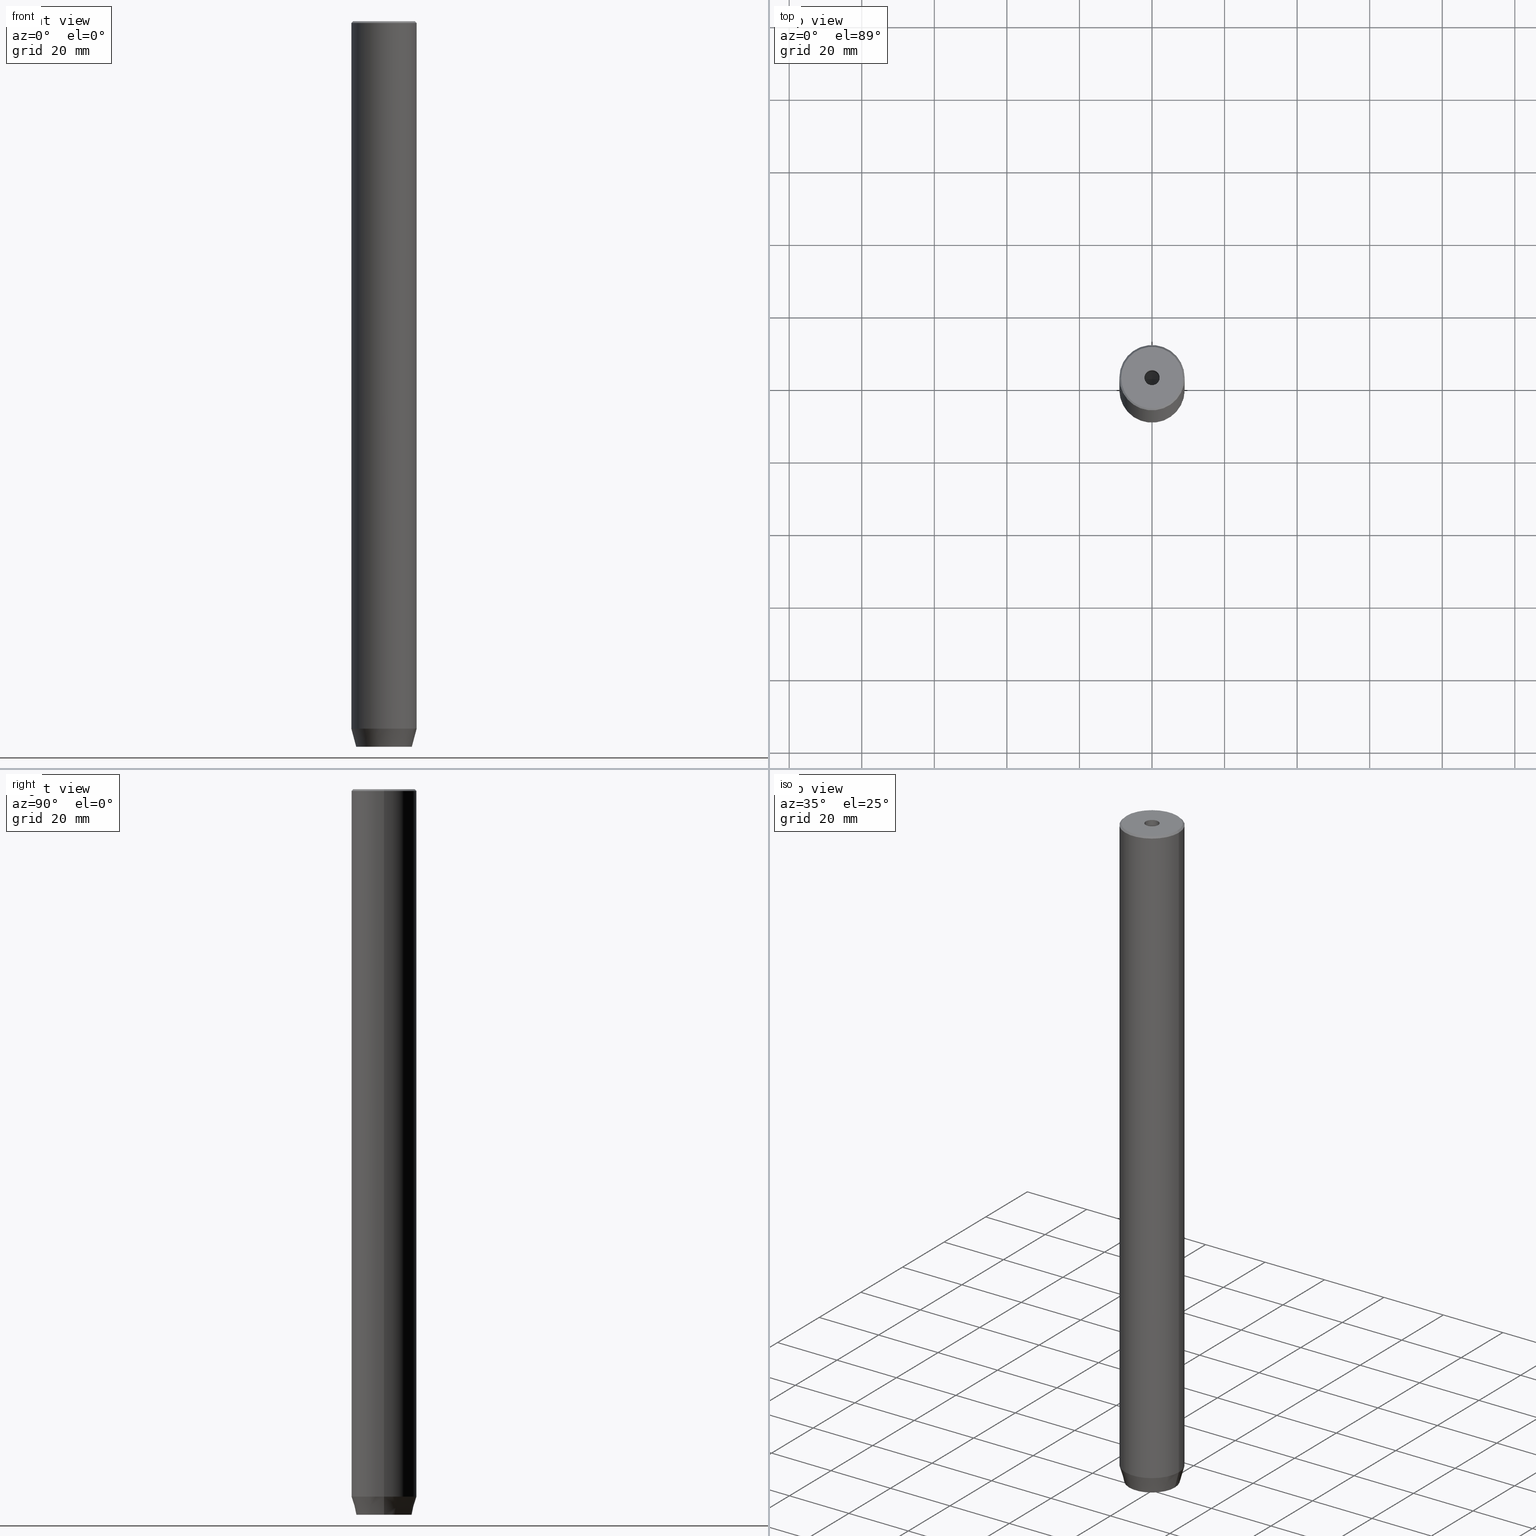
[diagram: canonical four-view strip — front | top / right | iso, engineering-drawing reading convention]
A machine part, canonical four-view strip (front | top / right | iso — engineering-drawing reading convention). The complete STEP part file that produces these views, byte-faithful:
ISO-10303-21;
HEADER;
FILE_DESCRIPTION (( 'STEP AP203' ),
    '1' );
FILE_NAME ('8e25.STEP',
    '2024-01-02T19:07:03',
    ( '' ),
    ( '' ),
    'SwSTEP 2.0',
    'SolidWorks 2019',
    '' );
FILE_SCHEMA (( 'CONFIG_CONTROL_DESIGN' ));
ENDSEC;

DATA;
#1 = ADVANCED_FACE ( 'NONE', ( #198 ), #379, .F. ) ;
#2 = CARTESIAN_POINT ( 'NONE',  ( -2.099999999999996092, 2.571758278209436534E-16, -20.00000000000000000 ) ) ;
#3 = CIRCLE ( 'NONE', #176, 8.500000000000007105 ) ;
#4 = AXIS2_PLACEMENT_3D ( 'NONE', #286, #144, #471 ) ;
#5 = LOCAL_TIME ( 20, 7, 3.000000000000000000, #568 ) ;
#6 = CARTESIAN_POINT ( 'NONE',  ( -2.168404344971008868E-16, -3.464101615137754830, -197.2000000000000171 ) ) ;
#7 = EDGE_CURVE ( 'NONE', #191, #236, #287, .T. ) ;
#8 = DIRECTION ( 'NONE',  ( 1.000000000000000000, 0.000000000000000000, 0.000000000000000000 ) ) ;
#9 = CARTESIAN_POINT ( 'NONE',  ( 0.000000000000000000, 0.000000000000000000, 0.000000000000000000 ) ) ;
#10 = EDGE_LOOP ( 'NONE', ( #103, #371, #527, #94 ) ) ;
#11 = APPROVAL ( #145, 'NEUR�EN�' ) ;
#12 = AXIS2_PLACEMENT_3D ( 'NONE', #21, #372, #68 ) ;
#13 = CC_DESIGN_APPROVAL ( #491, ( #83 ) ) ;
#14 = DIRECTION ( 'NONE',  ( 0.8660254037844385966, -0.5000000000000001110, 0.000000000000000000 ) ) ;
#15 = CARTESIAN_POINT ( 'NONE',  ( -5.207640850796248781E-15, 0.000000000000000000, -21.26180729995787999 ) ) ;
#16 = CARTESIAN_POINT ( 'NONE',  ( 1.500000000000000222, 2.598076211353315568, -200.0000000000000000 ) ) ;
#17 = ORIENTED_EDGE ( 'NONE', *, *, #507, .T. ) ;
#18 = DIRECTION ( 'NONE',  ( -0.8660254037844385966, 0.5000000000000001110, 0.000000000000000000 ) ) ;
#19 = ORIENTED_EDGE ( 'NONE', *, *, #7, .F. ) ;
#20 = EDGE_LOOP ( 'NONE', ( #446, #294, #546 ) ) ;
#21 = CARTESIAN_POINT ( 'NONE',  ( 0.000000000000000000, 0.000000000000000000, -200.0000000000000000 ) ) ;
#22 = ORIENTED_EDGE ( 'NONE', *, *, #61, .F. ) ;
#23 =( NAMED_UNIT ( * ) PLANE_ANGLE_UNIT ( ) SI_UNIT ( $, .RADIAN. ) );
#24 = VECTOR ( 'NONE', #437, 1000.000000000000000 ) ;
#25 = ORGANIZATION ( 'NEUR�EN�', 'NEUR�EN�', '' ) ;
#26 = DIRECTION ( 'NONE',  ( -0.000000000000000000, -0.000000000000000000, 1.000000000000000000 ) ) ;
#27 = EDGE_CURVE ( 'NONE', #505, #65, #290, .T. ) ;
#28 = ORIENTED_EDGE ( 'NONE', *, *, #101, .T. ) ;
#29 = LINE ( 'NONE', #235, #130 ) ;
#30 = VERTEX_POINT ( 'NONE', #158 ) ;
#31 = LINE ( 'NONE', #345, #24 ) ;
#32 = EDGE_LOOP ( 'NONE', ( #278, #132, #419, #17, #240, #28 ) ) ;
#33 = EDGE_CURVE ( 'NONE', #460, #414, #29, .T. ) ;
#34 = CIRCLE ( 'NONE', #439, 8.500000000000007105 ) ;
#35 = LINE ( 'NONE', #353, #483 ) ;
#36 = DIRECTION ( 'NONE',  ( 0.7071067811865451302, 8.659560562354903276E-17, -0.7071067811865500152 ) ) ;
#37 = PERSON_AND_ORGANIZATION ( #504, #25 ) ;
#38 = LINE ( 'NONE', #214, #151 ) ;
#39 = DIRECTION ( 'NONE',  ( -0.8660254037844385966, 0.5000000000000001110, 0.000000000000000000 ) ) ;
#40 = AXIS2_PLACEMENT_3D ( 'NONE', #503, #283, #275 ) ;
#41 = EDGE_CURVE ( 'NONE', #285, #325, #260, .T. ) ;
#42 = VECTOR ( 'NONE', #245, 1000.000000000000000 ) ;
#43 = FACE_OUTER_BOUND ( 'NONE', #454, .T. ) ;
#44 = LINE ( 'NONE', #364, #105 ) ;
#45 = EDGE_LOOP ( 'NONE', ( #555, #331, #333, #99 ) ) ;
#46 = EDGE_CURVE ( 'NONE', #472, #563, #3, .T. ) ;
#47 = LINE ( 'NONE', #307, #492 ) ;
#48 = VERTEX_POINT ( 'NONE', #376 ) ;
#49 = AXIS2_PLACEMENT_3D ( 'NONE', #427, #229, #411 ) ;
#50 = CARTESIAN_POINT ( 'NONE',  ( -8.500000000000007105, 0.000000000000000000, 0.000000000000000000 ) ) ;
#51 = VERTEX_POINT ( 'NONE', #57 ) ;
#52 = PLANE ( 'NONE',  #367 ) ;
#53 = ORIENTED_EDGE ( 'NONE', *, *, #435, .T. ) ;
#54 = ADVANCED_FACE ( 'NONE', ( #569 ), #370, .T. ) ;
#55 = LINE ( 'NONE', #115, #186 ) ;
#56 = VERTEX_POINT ( 'NONE', #203 ) ;
#57 = CARTESIAN_POINT ( 'NONE',  ( -1.084202172485504434E-16, 3.464101615137754830, -197.2000000000000171 ) ) ;
#58 = ORIENTED_EDGE ( 'NONE', *, *, #288, .F. ) ;
#59 = DIRECTION ( 'NONE',  ( 0.000000000000000000, -1.000000000000000000, 0.000000000000000000 ) ) ;
#60 = ORIENTED_EDGE ( 'NONE', *, *, #533, .T. ) ;
#61 = EDGE_CURVE ( 'NONE', #56, #325, #188, .T. ) ;
#62 = DIRECTION ( 'NONE',  ( 0.000000000000000000, 0.000000000000000000, -1.000000000000000000 ) ) ;
#63 = ORIENTED_EDGE ( 'NONE', *, *, #577, .T. ) ;
#64 = DIRECTION ( 'NONE',  ( -0.7071067811865451302, 0.000000000000000000, -0.7071067811865500152 ) ) ;
#65 = VERTEX_POINT ( 'NONE', #383 ) ;
#66 = EDGE_CURVE ( 'NONE', #472, #443, #461, .T. ) ;
#67 = PLANE ( 'NONE',  #558 ) ;
#68 = DIRECTION ( 'NONE',  ( 1.000000000000000000, 0.000000000000000000, 0.000000000000000000 ) ) ;
#69 = ORIENTED_EDGE ( 'NONE', *, *, #41, .F. ) ;
#70 = DIRECTION ( 'NONE',  ( -0.8660254037844385966, -0.5000000000000001110, 0.000000000000000000 ) ) ;
#71 = VECTOR ( 'NONE', #249, 1000.000000000000000 ) ;
#72 = DIRECTION ( 'NONE',  ( -0.000000000000000000, -0.000000000000000000, 1.000000000000000000 ) ) ;
#73 = EDGE_LOOP ( 'NONE', ( #226, #312, #361, #322, #91, #76 ) ) ;
#74 = PERSON_AND_ORGANIZATION_ROLE ( 'classification_officer' ) ;
#75 = CARTESIAN_POINT ( 'NONE',  ( -1.499999999999999556, 2.598076211353316012, -200.0000000000000000 ) ) ;
#76 = ORIENTED_EDGE ( 'NONE', *, *, #586, .F. ) ;
#77 = ADVANCED_FACE ( 'NONE', ( #326 ), #200, .T. ) ;
#78 = DIRECTION ( 'NONE',  ( -0.000000000000000000, -0.000000000000000000, -1.000000000000000000 ) ) ;
#79 = CALENDAR_DATE ( 2024, 2, 1 ) ;
#80 = VECTOR ( 'NONE', #72, 1000.000000000000000 ) ;
#81 = AXIS2_PLACEMENT_3D ( 'NONE', #82, #429, #259 ) ;
#82 = CARTESIAN_POINT ( 'NONE',  ( 0.000000000000000000, 0.000000000000000000, -195.0000000000000000 ) ) ;
#83 = PRODUCT_DEFINITION_FORMATION_WITH_SPECIFIED_SOURCE ( 'LIBOVOLN�', '', #465, .NOT_KNOWN. ) ;
#84 = APPROVAL_ROLE ( '' ) ;
#85 = FACE_OUTER_BOUND ( 'NONE', #561, .T. ) ;
#86 = EDGE_CURVE ( 'NONE', #30, #191, #131, .T. ) ;
#87 = FACE_OUTER_BOUND ( 'NONE', #238, .T. ) ;
#88 = DIRECTION ( 'NONE',  ( -0.000000000000000000, -0.000000000000000000, 1.000000000000000000 ) ) ;
#89 = ADVANCED_FACE ( 'NONE', ( #196 ), #562, .F. ) ;
#90 = CARTESIAN_POINT ( 'NONE',  ( 0.000000000000000000, 0.000000000000000000, 0.000000000000000000 ) ) ;
#91 = ORIENTED_EDGE ( 'NONE', *, *, #27, .F. ) ;
#92 = EDGE_CURVE ( 'NONE', #51, #193, #332, .T. ) ;
#93 = CARTESIAN_POINT ( 'NONE',  ( -1.500000000000000666, -2.598076211353316456, -197.2000000000000171 ) ) ;
#94 = ORIENTED_EDGE ( 'NONE', *, *, #126, .T. ) ;
#95 = CARTESIAN_POINT ( 'NONE',  ( 0.000000000000000000, 0.000000000000000000, -197.2000000000000171 ) ) ;
#96 = ORIENTED_EDGE ( 'NONE', *, *, #377, .F. ) ;
#97 = VECTOR ( 'NONE', #357, 1000.000000000000000 ) ;
#98 = DIRECTION ( 'NONE',  ( 0.8660254037844385966, -0.5000000000000001110, 0.000000000000000000 ) ) ;
#99 = ORIENTED_EDGE ( 'NONE', *, *, #412, .T. ) ;
#100 = DIRECTION ( 'NONE',  ( -0.000000000000000000, -0.000000000000000000, 1.000000000000000000 ) ) ;
#101 = EDGE_CURVE ( 'NONE', #414, #48, #381, .T. ) ;
#102 = DIRECTION ( 'NONE',  ( -2.503857664561932376E-16, 1.000000000000000000, 0.000000000000000000 ) ) ;
#103 = ORIENTED_EDGE ( 'NONE', *, *, #334, .T. ) ;
#104 = CARTESIAN_POINT ( 'NONE',  ( 8.500000000000007105, 1.040949779275251126E-15, 0.000000000000000000 ) ) ;
#105 = VECTOR ( 'NONE', #548, 1000.000000000000000 ) ;
#106 =( LENGTH_UNIT ( ) NAMED_UNIT ( * ) SI_UNIT ( .MILLI., .METRE. ) );
#107 = ORIENTED_EDGE ( 'NONE', *, *, #507, .F. ) ;
#108 = DIRECTION ( 'NONE',  ( 1.000000000000000000, 0.000000000000000000, 0.000000000000000000 ) ) ;
#109 = ORIENTED_EDGE ( 'NONE', *, *, #212, .F. ) ;
#110 = EDGE_CURVE ( 'NONE', #443, #384, #410, .T. ) ;
#111 = DIRECTION ( 'NONE',  ( -2.503857664561932376E-16, 1.000000000000000000, 0.000000000000000000 ) ) ;
#112 = ORIENTED_EDGE ( 'NONE', *, *, #481, .T. ) ;
#113 = DIRECTION ( 'NONE',  ( 0.8660254037844385966, -0.5000000000000001110, 0.000000000000000000 ) ) ;
#114 = CARTESIAN_POINT ( 'NONE',  ( 3.000000000000000000, 0.000000000000000000, -197.2000000000000171 ) ) ;
#115 = CARTESIAN_POINT ( 'NONE',  ( -1.084202172485504434E-16, 3.464101615137754830, -197.2000000000000171 ) ) ;
#116 = DIRECTION ( 'NONE',  ( 0.000000000000000000, -0.000000000000000000, 1.000000000000000000 ) ) ;
#117 = ORIENTED_EDGE ( 'NONE', *, *, #66, .T. ) ;
#118 = AXIS2_PLACEMENT_3D ( 'NONE', #359, #540, #405 ) ;
#119 = VECTOR ( 'NONE', #70, 1000.000000000000000 ) ;
#120 = ADVANCED_FACE ( 'NONE', ( #506, #242 ), #423, .T. ) ;
#121 = DIRECTION ( 'NONE',  ( -0.000000000000000000, -0.000000000000000000, 1.000000000000000000 ) ) ;
#122 = ORIENTED_EDGE ( 'NONE', *, *, #41, .T. ) ;
#123 = DIRECTION ( 'NONE',  ( 1.000000000000000000, 0.000000000000000000, 0.000000000000000000 ) ) ;
#124 = DIRECTION ( 'NONE',  ( 1.000000000000000000, 0.000000000000000000, 0.000000000000000000 ) ) ;
#125 = CARTESIAN_POINT ( 'NONE',  ( 2.099999999999996092, 0.000000000000000000, -20.00000000000000000 ) ) ;
#126 = EDGE_CURVE ( 'NONE', #460, #570, #323, .T. ) ;
#127 = DIRECTION ( 'NONE',  ( -0.000000000000000000, -0.000000000000000000, 1.000000000000000000 ) ) ;
#128 = DIRECTION ( 'NONE',  ( -0.000000000000000000, -0.000000000000000000, 1.000000000000000000 ) ) ;
#129 = DIRECTION ( 'NONE',  ( -0.000000000000000000, -0.000000000000000000, -1.000000000000000000 ) ) ;
#130 = VECTOR ( 'NONE', #18, 1000.000000000000000 ) ;
#131 = CIRCLE ( 'NONE', #12, 7.660254037844380193 ) ;
#132 = ORIENTED_EDGE ( 'NONE', *, *, #92, .T. ) ;
#133 = DIRECTION ( 'NONE',  ( 0.8660254037844385966, 0.5000000000000001110, 0.000000000000000000 ) ) ;
#134 = ORIENTED_EDGE ( 'NONE', *, *, #181, .T. ) ;
#135 = CARTESIAN_POINT ( 'NONE',  ( 0.000000000000000000, 0.000000000000000000, -1.990051048614449116E-16 ) ) ;
#136 = ORIENTED_EDGE ( 'NONE', *, *, #148, .F. ) ;
#137 = CARTESIAN_POINT ( 'NONE',  ( -3.000000000000000000, -1.732050807568877859, -197.2000000000000171 ) ) ;
#138 = ORIENTED_EDGE ( 'NONE', *, *, #313, .F. ) ;
#139 = ADVANCED_FACE ( 'NONE', ( #455 ), #424, .F. ) ;
#140 = LINE ( 'NONE', #16, #178 ) ;
#141 = VERTEX_POINT ( 'NONE', #15 ) ;
#142 = LINE ( 'NONE', #464, #484 ) ;
#143 = ORIENTED_EDGE ( 'NONE', *, *, #344, .T. ) ;
#144 = DIRECTION ( 'NONE',  ( 0.000000000000000000, 0.000000000000000000, -1.000000000000000000 ) ) ;
#145 = APPROVAL_STATUS ( 'not_yet_approved' ) ;
#146 = ORIENTED_EDGE ( 'NONE', *, *, #544, .F. ) ;
#147 = CARTESIAN_POINT ( 'NONE',  ( 0.000000000000000000, 0.000000000000000000, -1.990051048614449116E-16 ) ) ;
#148 = EDGE_CURVE ( 'NONE', #563, #384, #554, .T. ) ;
#149 = EDGE_LOOP ( 'NONE', ( #466, #60, #462, #315 ) ) ;
#150 = VECTOR ( 'NONE', #64, 1000.000000000000114 ) ;
#151 = VECTOR ( 'NONE', #171, 1000.000000000000000 ) ;
#152 = AXIS2_PLACEMENT_3D ( 'NONE', #9, #422, #183 ) ;
#153 = EDGE_LOOP ( 'NONE', ( #450, #69 ) ) ;
#154 = CARTESIAN_POINT ( 'NONE',  ( -1.499999999999999556, 2.598076211353316012, -197.2000000000000171 ) ) ;
#155 = ORIENTED_EDGE ( 'NONE', *, *, #586, .T. ) ;
#156 = FACE_OUTER_BOUND ( 'NONE', #45, .T. ) ;
#157 = UNCERTAINTY_MEASURE_WITH_UNIT (LENGTH_MEASURE( 1.000000000000000082E-05 ), #106, 'distance_accuracy_value', 'NONE');
#158 = CARTESIAN_POINT ( 'NONE',  ( 7.660254037844380193, 0.000000000000000000, -200.0000000000000000 ) ) ;
#159 = ORIENTED_EDGE ( 'NONE', *, *, #110, .F. ) ;
#160 = CARTESIAN_POINT ( 'NONE',  ( -9.000000000000000000, 1.102182119232617714E-15, -195.0000000000000000 ) ) ;
#161 = EDGE_LOOP ( 'NONE', ( #430, #373, #122, #22 ) ) ;
#162 = CIRCLE ( 'NONE', #317, 9.000000000000000000 ) ;
#163 = ADVANCED_BREP_SHAPE_REPRESENTATION ( '8e25', ( #232, #152 ), #262 ) ;
#164 = COORDINATED_UNIVERSAL_TIME_OFFSET ( 1, 0, .AHEAD. ) ;
#165 = LINE ( 'NONE', #299, #71 ) ;
#166 = EDGE_LOOP ( 'NONE', ( #281, #515, #58, #53 ) ) ;
#167 = APPROVAL_STATUS ( 'not_yet_approved' ) ;
#168 = DIRECTION ( 'NONE',  ( 0.000000000000000000, 0.000000000000000000, -1.000000000000000000 ) ) ;
#169 = PLANE ( 'NONE',  #524 ) ;
#170 = CALENDAR_DATE ( 2024, 2, 1 ) ;
#171 = DIRECTION ( 'NONE',  ( 0.000000000000000000, -1.000000000000000000, 0.000000000000000000 ) ) ;
#172 = CYLINDRICAL_SURFACE ( 'NONE', #261, 2.099999999999997424 ) ;
#173 = EDGE_CURVE ( 'NONE', #563, #472, #34, .T. ) ;
#174 = DIRECTION ( 'NONE',  ( -0.000000000000000000, -0.000000000000000000, 1.000000000000000000 ) ) ;
#175 = CARTESIAN_POINT ( 'NONE',  ( -3.000000000000000000, -1.732050807568877859, -200.0000000000000000 ) ) ;
#176 = AXIS2_PLACEMENT_3D ( 'NONE', #467, #520, #108 ) ;
#177 = AXIS2_PLACEMENT_3D ( 'NONE', #442, #128, #180 ) ;
#178 = VECTOR ( 'NONE', #14, 1000.000000000000000 ) ;
#179 = FACE_OUTER_BOUND ( 'NONE', #243, .T. ) ;
#180 = DIRECTION ( 'NONE',  ( 1.000000000000000000, 0.000000000000000000, 0.000000000000000000 ) ) ;
#181 = EDGE_CURVE ( 'NONE', #141, #56, #305, .T. ) ;
#182 = PRODUCT_DEFINITION_SHAPE ( 'NONE', 'NONE',  #539 ) ;
#183 = DIRECTION ( 'NONE',  ( 1.000000000000000000, 0.000000000000000000, 0.000000000000000000 ) ) ;
#184 = ORIENTED_EDGE ( 'NONE', *, *, #377, .T. ) ;
#185 = AXIS2_PLACEMENT_3D ( 'NONE', #135, #174, #264 ) ;
#186 = VECTOR ( 'NONE', #190, 1000.000000000000000 ) ;
#187 = CARTESIAN_POINT ( 'NONE',  ( 1.500000000000000222, -2.598076211353315568, -197.2000000000000171 ) ) ;
#188 = LINE ( 'NONE', #279, #80 ) ;
#189 = EDGE_CURVE ( 'NONE', #468, #56, #572, .T. ) ;
#190 = DIRECTION ( 'NONE',  ( -0.000000000000000000, -0.000000000000000000, -1.000000000000000000 ) ) ;
#191 = VERTEX_POINT ( 'NONE', #573 ) ;
#192 = DIRECTION ( 'NONE',  ( 1.000000000000000000, 0.000000000000000000, 0.000000000000000000 ) ) ;
#193 = VERTEX_POINT ( 'NONE', #256 ) ;
#194 = CARTESIAN_POINT ( 'NONE',  ( 3.000000000000000000, -1.732050807568876527, -197.2000000000000171 ) ) ;
#195 = EDGE_LOOP ( 'NONE', ( #136, #328, #117, #96 ) ) ;
#196 = FACE_OUTER_BOUND ( 'NONE', #166, .T. ) ;
#197 = AXIS2_PLACEMENT_3D ( 'NONE', #241, #62, #380 ) ;
#198 = FACE_OUTER_BOUND ( 'NONE', #421, .T. ) ;
#199 = VECTOR ( 'NONE', #534, 999.9999999999998863 ) ;
#200 = CYLINDRICAL_SURFACE ( 'NONE', #584, 9.000000000000000000 ) ;
#201 = DIRECTION ( 'NONE',  ( 1.000000000000000000, 0.000000000000000000, -0.000000000000000000 ) ) ;
#202 = APPROVAL_STATUS ( 'not_yet_approved' ) ;
#203 = CARTESIAN_POINT ( 'NONE',  ( 2.099999999999996092, 0.000000000000000000, -20.00000000000000000 ) ) ;
#204 = ORIENTED_EDGE ( 'NONE', *, *, #27, .T. ) ;
#205 = EDGE_CURVE ( 'NONE', #65, #570, #165, .T. ) ;
#206 = DIRECTION ( 'NONE',  ( 1.000000000000000000, 0.000000000000000000, 0.000000000000000000 ) ) ;
#207 = ORIENTED_EDGE ( 'NONE', *, *, #86, .F. ) ;
#208 = CIRCLE ( 'NONE', #185, 2.099999999999998757 ) ;
#209 = DATE_AND_TIME ( #79, #403 ) ;
#210 = CARTESIAN_POINT ( 'NONE',  ( 0.000000000000000000, 0.000000000000000000, 0.000000000000000000 ) ) ;
#211 = PERSON_AND_ORGANIZATION_ROLE ( 'creator' ) ;
#212 = EDGE_CURVE ( 'NONE', #575, #236, #162, .T. ) ;
#213 = CARTESIAN_POINT ( 'NONE',  ( 0.000000000000000000, 0.000000000000000000, -20.00000000000000000 ) ) ;
#214 = CARTESIAN_POINT ( 'NONE',  ( 3.000000000000000000, 0.000000000000000000, -197.2000000000000171 ) ) ;
#215 = AXIS2_PLACEMENT_3D ( 'NONE', #404, #496, #8 ) ;
#216 = FACE_BOUND ( 'NONE', #73, .T. ) ;
#217 = CC_DESIGN_DATE_AND_TIME_ASSIGNMENT ( #304, #571, ( #539 ) ) ;
#218 = DIRECTION ( 'NONE',  ( -0.8571673007021111124, 1.049727191138617217E-16, 0.5150380749100562650 ) ) ;
#219 = DIRECTION ( 'NONE',  ( 0.000000000000000000, 0.000000000000000000, -1.000000000000000000 ) ) ;
#220 = ORIENTED_EDGE ( 'NONE', *, *, #344, .F. ) ;
#221 = CC_DESIGN_APPROVAL ( #11, ( #539 ) ) ;
#222 = DIRECTION ( 'NONE',  ( 1.000000000000000000, 0.000000000000000000, 0.000000000000000000 ) ) ;
#223 = AXIS2_PLACEMENT_3D ( 'NONE', #147, #26, #192 ) ;
#224 = DIRECTION ( 'NONE',  ( -0.5000000000000001110, -0.8660254037844385966, 0.000000000000000000 ) ) ;
#225 = EDGE_CURVE ( 'NONE', #468, #285, #31, .T. ) ;
#226 = ORIENTED_EDGE ( 'NONE', *, *, #306, .F. ) ;
#227 = DIRECTION ( 'NONE',  ( 1.000000000000000000, 0.000000000000000000, 0.000000000000000000 ) ) ;
#228 = DIRECTION ( 'NONE',  ( -1.000000000000000000, -2.503857664561933362E-16, 0.000000000000000000 ) ) ;
#229 = DIRECTION ( 'NONE',  ( -0.000000000000000000, -0.000000000000000000, 1.000000000000000000 ) ) ;
#230 = VECTOR ( 'NONE', #218, 1000.000000000000000 ) ;
#231 = ADVANCED_FACE ( 'NONE', ( #393 ), #169, .F. ) ;
#232 = MANIFOLD_SOLID_BREP ( 'Vrt�k z�vitn�ku pro M5 z�vit1', #583 ) ;
#233 = APPLICATION_PROTOCOL_DEFINITION ( 'international standard', 'config_control_design', 1994, #550 ) ;
#234 = ORIENTED_EDGE ( 'NONE', *, *, #7, .T. ) ;
#235 = CARTESIAN_POINT ( 'NONE',  ( -1.500000000000000666, -2.598076211353316456, -197.2000000000000171 ) ) ;
#236 = VERTEX_POINT ( 'NONE', #160 ) ;
#237 = CARTESIAN_POINT ( 'NONE',  ( 0.000000000000000000, 0.000000000000000000, -200.0000000000000000 ) ) ;
#238 = EDGE_LOOP ( 'NONE', ( #416, #234, #109, #282 ) ) ;
#239 = DIRECTION ( 'NONE',  ( -0.000000000000000000, -0.000000000000000000, 1.000000000000000000 ) ) ;
#240 = ORIENTED_EDGE ( 'NONE', *, *, #33, .T. ) ;
#241 = CARTESIAN_POINT ( 'NONE',  ( 0.000000000000000000, 0.000000000000000000, 0.000000000000000000 ) ) ;
#242 = FACE_OUTER_BOUND ( 'NONE', #502, .T. ) ;
#243 = EDGE_LOOP ( 'NONE', ( #389, #406, #428, #365 ) ) ;
#244 = AXIS2_PLACEMENT_3D ( 'NONE', #90, #490, #227 ) ;
#245 = DIRECTION ( 'NONE',  ( -0.000000000000000000, -0.000000000000000000, -1.000000000000000000 ) ) ;
#246 = ADVANCED_FACE ( 'NONE', ( #87 ), #308, .T. ) ;
#247 = ORIENTED_EDGE ( 'NONE', *, *, #354, .T. ) ;
#248 = PERSON_AND_ORGANIZATION_ROLE ( 'creator' ) ;
#249 = DIRECTION ( 'NONE',  ( -0.8660254037844385966, -0.5000000000000001110, 0.000000000000000000 ) ) ;
#250 = ORIENTED_EDGE ( 'NONE', *, *, #408, .T. ) ;
#251 = DIRECTION ( 'NONE',  ( -1.000000000000000000, 0.000000000000000000, -0.000000000000000000 ) ) ;
#252 = ADVANCED_FACE ( 'NONE', ( #216, #85 ), #258, .T. ) ;
#253 = VECTOR ( 'NONE', #36, 1000.000000000000114 ) ;
#254 = COORDINATED_UNIVERSAL_TIME_OFFSET ( 1, 0, .AHEAD. ) ;
#255 = APPROVAL_PERSON_ORGANIZATION ( #298, #491, #84 ) ;
#256 = CARTESIAN_POINT ( 'NONE',  ( 3.000000000000000000, 1.732050807568876527, -197.2000000000000171 ) ) ;
#257 = CALENDAR_DATE ( 2024, 2, 1 ) ;
#258 = PLANE ( 'NONE',  #458 ) ;
#259 = DIRECTION ( 'NONE',  ( 1.000000000000000000, 0.000000000000000000, 0.000000000000000000 ) ) ;
#260 = CIRCLE ( 'NONE', #223, 2.099999999999998757 ) ;
#261 = AXIS2_PLACEMENT_3D ( 'NONE', #266, #88, #222 ) ;
#262 =( GEOMETRIC_REPRESENTATION_CONTEXT ( 3 ) GLOBAL_UNCERTAINTY_ASSIGNED_CONTEXT ( ( #157 ) ) GLOBAL_UNIT_ASSIGNED_CONTEXT ( ( #106, #23, #552 ) ) REPRESENTATION_CONTEXT ( 'NONE', 'WORKASPACE' ) );
#263 = CARTESIAN_POINT ( 'NONE',  ( -3.000000000000000888, 1.732050807568876527, -197.2000000000000171 ) ) ;
#264 = DIRECTION ( 'NONE',  ( 1.000000000000000000, 0.000000000000000000, 0.000000000000000000 ) ) ;
#265 = EDGE_LOOP ( 'NONE', ( #553, #363, #107, #369 ) ) ;
#266 = CARTESIAN_POINT ( 'NONE',  ( 0.000000000000000000, 0.000000000000000000, 0.000000000000000000 ) ) ;
#267 = EDGE_CURVE ( 'NONE', #56, #468, #327, .T. ) ;
#268 = PLANE ( 'NONE',  #397 ) ;
#269 = VECTOR ( 'NONE', #480, 1000.000000000000000 ) ;
#270 = ORIENTED_EDGE ( 'NONE', *, *, #173, .T. ) ;
#271 = VECTOR ( 'NONE', #111, 1000.000000000000000 ) ;
#272 = CARTESIAN_POINT ( 'NONE',  ( -9.000000000000000000, 1.102182119232617714E-15, -0.4999999999999952260 ) ) ;
#273 = DIRECTION ( 'NONE',  ( -0.000000000000000000, -0.000000000000000000, -1.000000000000000000 ) ) ;
#274 = EDGE_LOOP ( 'NONE', ( #517, #340, #159, #337 ) ) ;
#275 = DIRECTION ( 'NONE',  ( 1.000000000000000000, 0.000000000000000000, 0.000000000000000000 ) ) ;
#276 = CC_DESIGN_PERSON_AND_ORGANIZATION_ASSIGNMENT ( #581, #338, ( #83 ) ) ;
#277 = LINE ( 'NONE', #194, #447 ) ;
#278 = ORIENTED_EDGE ( 'NONE', *, *, #288, .T. ) ;
#279 = CARTESIAN_POINT ( 'NONE',  ( 2.099999999999997424, 0.000000000000000000, 0.000000000000000000 ) ) ;
#280 = VECTOR ( 'NONE', #102, 1000.000000000000000 ) ;
#281 = ORIENTED_EDGE ( 'NONE', *, *, #306, .T. ) ;
#282 = ORIENTED_EDGE ( 'NONE', *, *, #481, .F. ) ;
#283 = DIRECTION ( 'NONE',  ( -0.000000000000000000, -0.000000000000000000, 1.000000000000000000 ) ) ;
#284 = ORIENTED_EDGE ( 'NONE', *, *, #354, .F. ) ;
#285 = VERTEX_POINT ( 'NONE', #431 ) ;
#286 = CARTESIAN_POINT ( 'NONE',  ( 0.000000000000000000, 0.000000000000000000, -0.4999999999999952260 ) ) ;
#287 = LINE ( 'NONE', #566, #388 ) ;
#288 = EDGE_CURVE ( 'NONE', #48, #51, #293, .T. ) ;
#289 = DIRECTION ( 'NONE',  ( 1.000000000000000000, 0.000000000000000000, 0.000000000000000000 ) ) ;
#290 = LINE ( 'NONE', #475, #291 ) ;
#291 = VECTOR ( 'NONE', #59, 1000.000000000000000 ) ;
#292 = DATE_TIME_ROLE ( 'classification_date' ) ;
#293 = LINE ( 'NONE', #579, #199 ) ;
#294 = ORIENTED_EDGE ( 'NONE', *, *, #463, .T. ) ;
#295 = DATE_AND_TIME ( #170, #5 ) ;
#296 = CARTESIAN_POINT ( 'NONE',  ( 3.000000000000000000, 1.732050807568876527, -197.2000000000000171 ) ) ;
#297 = ADVANCED_FACE ( 'NONE', ( #582 ), #300, .T. ) ;
#298 = PERSON_AND_ORGANIZATION ( #504, #25 ) ;
#299 = CARTESIAN_POINT ( 'NONE',  ( 1.500000000000000222, -2.598076211353315568, -200.0000000000000000 ) ) ;
#300 = CONICAL_SURFACE ( 'NONE', #402, 8.500000000000007105, 0.7853981633974447263 ) ;
#301 = COORDINATED_UNIVERSAL_TIME_OFFSET ( 1, 0, .AHEAD. ) ;
#302 = LOCAL_TIME ( 20, 7, 3.000000000000000000, #576 ) ;
#303 = DIRECTION ( 'NONE',  ( 1.000000000000000000, 0.000000000000000000, 0.000000000000000000 ) ) ;
#304 = DATE_AND_TIME ( #486, #302 ) ;
#305 = LINE ( 'NONE', #125, #269 ) ;
#306 = EDGE_CURVE ( 'NONE', #375, #513, #436, .T. ) ;
#307 = CARTESIAN_POINT ( 'NONE',  ( -3.000000000000000000, -1.732050807568877859, -197.2000000000000171 ) ) ;
#308 = CONICAL_SURFACE ( 'NONE', #81, 9.000000000000000000, 0.2617993877991502405 ) ;
#309 = FACE_OUTER_BOUND ( 'NONE', #511, .T. ) ;
#310 = ORIENTED_EDGE ( 'NONE', *, *, #267, .T. ) ;
#311 = LINE ( 'NONE', #355, #230 ) ;
#312 = ORIENTED_EDGE ( 'NONE', *, *, #567, .F. ) ;
#313 = EDGE_CURVE ( 'NONE', #193, #549, #38, .T. ) ;
#314 = LINE ( 'NONE', #263, #97 ) ;
#315 = ORIENTED_EDGE ( 'NONE', *, *, #408, .F. ) ;
#316 = LINE ( 'NONE', #495, #390 ) ;
#317 = AXIS2_PLACEMENT_3D ( 'NONE', #487, #489, #124 ) ;
#318 = ORIENTED_EDGE ( 'NONE', *, *, #533, .F. ) ;
#319 = CC_DESIGN_PERSON_AND_ORGANIZATION_ASSIGNMENT ( #343, #248, ( #539 ) ) ;
#320 = PERSON_AND_ORGANIZATION_ROLE ( 'design_owner' ) ;
#321 = CARTESIAN_POINT ( 'NONE',  ( 1.500000000000000222, 2.598076211353315568, -197.2000000000000171 ) ) ;
#322 = ORIENTED_EDGE ( 'NONE', *, *, #205, .F. ) ;
#323 = LINE ( 'NONE', #473, #42 ) ;
#324 = APPROVAL_ROLE ( '' ) ;
#325 = VERTEX_POINT ( 'NONE', #396 ) ;
#326 = FACE_OUTER_BOUND ( 'NONE', #531, .T. ) ;
#327 = CIRCLE ( 'NONE', #448, 2.099999999999996092 ) ;
#328 = ORIENTED_EDGE ( 'NONE', *, *, #46, .F. ) ;
#329 = CONICAL_SURFACE ( 'NONE', #197, 8.500000000000007105, 0.7853981633974447263 ) ;
#330 = CARTESIAN_POINT ( 'NONE',  ( 0.000000000000000000, 3.464101615137754386, -200.0000000000000000 ) ) ;
#331 = ORIENTED_EDGE ( 'NONE', *, *, #435, .F. ) ;
#332 = LINE ( 'NONE', #321, #509 ) ;
#333 = ORIENTED_EDGE ( 'NONE', *, *, #101, .F. ) ;
#334 = EDGE_CURVE ( 'NONE', #570, #479, #35, .T. ) ;
#335 = CARTESIAN_POINT ( 'NONE',  ( 8.500000000000007105, 1.071565949253934321E-15, 0.000000000000000000 ) ) ;
#336 = CARTESIAN_POINT ( 'NONE',  ( 0.000000000000000000, 0.000000000000000000, 0.000000000000000000 ) ) ;
#337 = ORIENTED_EDGE ( 'NONE', *, *, #66, .F. ) ;
#338 = PERSON_AND_ORGANIZATION_ROLE ( 'design_supplier' ) ;
#339 = CARTESIAN_POINT ( 'NONE',  ( 0.000000000000000000, 7.660254037844380193, -200.0000000000000000 ) ) ;
#340 = ORIENTED_EDGE ( 'NONE', *, *, #148, .T. ) ;
#341 = VECTOR ( 'NONE', #78, 1000.000000000000000 ) ;
#342 = CC_DESIGN_APPROVAL ( #537, ( #526 ) ) ;
#343 = PERSON_AND_ORGANIZATION ( #504, #25 ) ;
#344 = EDGE_CURVE ( 'NONE', #236, #575, #542, .T. ) ;
#345 = CARTESIAN_POINT ( 'NONE',  ( -2.099999999999997424, 2.571758278209438506E-16, 0.000000000000000000 ) ) ;
#346 = ORIENTED_EDGE ( 'NONE', *, *, #92, .F. ) ;
#347 = PERSON_AND_ORGANIZATION ( #504, #25 ) ;
#348 = LINE ( 'NONE', #296, #341 ) ;
#349 = APPROVAL_DATE_TIME ( #352, #537 ) ;
#350 = DIRECTION ( 'NONE',  ( 0.5000000000000001110, 0.8660254037844385966, -0.000000000000000000 ) ) ;
#351 = CONICAL_SURFACE ( 'NONE', #177, 2.099999999999996092, 1.029744258676652091 ) ;
#352 = DATE_AND_TIME ( #488, #574 ) ;
#353 = CARTESIAN_POINT ( 'NONE',  ( -1.500000000000000666, -2.598076211353316456, -200.0000000000000000 ) ) ;
#354 = EDGE_CURVE ( 'NONE', #193, #505, #348, .T. ) ;
#355 = CARTESIAN_POINT ( 'NONE',  ( -2.099999999999996092, 2.571758278209436534E-16, -20.00000000000000000 ) ) ;
#356 = APPLICATION_CONTEXT ( 'configuration controlled 3d designs of mechanical parts and assemblies' ) ;
#357 = DIRECTION ( 'NONE',  ( -0.000000000000000000, -0.000000000000000000, -1.000000000000000000 ) ) ;
#358 = AXIS2_PLACEMENT_3D ( 'NONE', #213, #127, #303 ) ;
#359 = CARTESIAN_POINT ( 'NONE',  ( 0.000000000000000000, 0.000000000000000000, -0.4999999999999952260 ) ) ;
#360 = ADVANCED_FACE ( 'NONE', ( #309 ), #474, .T. ) ;
#361 = ORIENTED_EDGE ( 'NONE', *, *, #334, .F. ) ;
#362 = CARTESIAN_POINT ( 'NONE',  ( 3.000000000000000000, 1.732050807568876527, -200.0000000000000000 ) ) ;
#363 = ORIENTED_EDGE ( 'NONE', *, *, #126, .F. ) ;
#364 = CARTESIAN_POINT ( 'NONE',  ( 9.000000000000000000, 0.000000000000000000, 0.000000000000000000 ) ) ;
#365 = ORIENTED_EDGE ( 'NONE', *, *, #417, .T. ) ;
#366 = MECHANICAL_CONTEXT ( 'NONE', #356, 'mechanical' ) ;
#367 = AXIS2_PLACEMENT_3D ( 'NONE', #95, #219, #494 ) ;
#368 = ORIENTED_EDGE ( 'NONE', *, *, #46, .T. ) ;
#369 = ORIENTED_EDGE ( 'NONE', *, *, #544, .T. ) ;
#370 = CYLINDRICAL_SURFACE ( 'NONE', #40, 9.000000000000000000 ) ;
#371 = ORIENTED_EDGE ( 'NONE', *, *, #412, .F. ) ;
#372 = DIRECTION ( 'NONE',  ( -0.000000000000000000, -0.000000000000000000, 1.000000000000000000 ) ) ;
#373 = ORIENTED_EDGE ( 'NONE', *, *, #225, .T. ) ;
#374 = CARTESIAN_POINT ( 'NONE',  ( 9.000000000000000000, 0.000000000000000000, -195.0000000000000000 ) ) ;
#375 = VERTEX_POINT ( 'NONE', #445 ) ;
#376 = CARTESIAN_POINT ( 'NONE',  ( -3.000000000000000888, 1.732050807568876527, -197.2000000000000171 ) ) ;
#377 = EDGE_CURVE ( 'NONE', #384, #443, #438, .T. ) ;
#378 = AXIS2_PLACEMENT_3D ( 'NONE', #154, #556, #516 ) ;
#379 = PLANE ( 'NONE',  #559 ) ;
#380 = DIRECTION ( 'NONE',  ( -1.000000000000000000, 0.000000000000000000, 0.000000000000000000 ) ) ;
#381 = LINE ( 'NONE', #565, #280 ) ;
#382 = DIRECTION ( 'NONE',  ( -0.000000000000000000, 0.000000000000000000, -1.000000000000000000 ) ) ;
#383 = CARTESIAN_POINT ( 'NONE',  ( 3.000000000000000000, -1.732050807568876527, -200.0000000000000000 ) ) ;
#384 = VERTEX_POINT ( 'NONE', #451 ) ;
#385 = CC_DESIGN_PERSON_AND_ORGANIZATION_ASSIGNMENT ( #347, #211, ( #83 ) ) ;
#386 = APPROVAL_DATE_TIME ( #394, #11 ) ;
#387 = DIRECTION ( 'NONE',  ( -0.000000000000000000, -0.000000000000000000, 1.000000000000000000 ) ) ;
#388 = VECTOR ( 'NONE', #521, 1000.000000000000114 ) ;
#389 = ORIENTED_EDGE ( 'NONE', *, *, #225, .F. ) ;
#390 = VECTOR ( 'NONE', #500, 1000.000000000000114 ) ;
#391 = SECURITY_CLASSIFICATION_LEVEL ( 'unclassified' ) ;
#392 = PRODUCT_RELATED_PRODUCT_CATEGORY ( 'detail', '', ( #465 ) ) ;
#393 = FACE_OUTER_BOUND ( 'NONE', #497, .T. ) ;
#394 = DATE_AND_TIME ( #257, #493 ) ;
#395 = CARTESIAN_POINT ( 'NONE',  ( 0.000000000000000000, 0.000000000000000000, -20.00000000000000000 ) ) ;
#396 = CARTESIAN_POINT ( 'NONE',  ( 2.099999999999998757, 0.000000000000000000, -1.990051048614449116E-16 ) ) ;
#397 = AXIS2_PLACEMENT_3D ( 'NONE', #401, #543, #133 ) ;
#398 = DIRECTION ( 'NONE',  ( 1.000000000000000000, 0.000000000000000000, 0.000000000000000000 ) ) ;
#399 = FACE_OUTER_BOUND ( 'NONE', #32, .T. ) ;
#400 = ADVANCED_FACE ( 'NONE', ( #43 ), #351, .F. ) ;
#401 = CARTESIAN_POINT ( 'NONE',  ( 1.500000000000000222, -2.598076211353315568, -197.2000000000000171 ) ) ;
#402 = AXIS2_PLACEMENT_3D ( 'NONE', #525, #168, #477 ) ;
#403 = LOCAL_TIME ( 20, 7, 3.000000000000000000, #254 ) ;
#404 = CARTESIAN_POINT ( 'NONE',  ( 0.000000000000000000, 0.000000000000000000, -195.0000000000000000 ) ) ;
#405 = DIRECTION ( 'NONE',  ( 1.000000000000000000, 0.000000000000000000, 0.000000000000000000 ) ) ;
#406 = ORIENTED_EDGE ( 'NONE', *, *, #267, .F. ) ;
#407 = DIRECTION ( 'NONE',  ( 2.503857664561933362E-16, -1.000000000000000000, 0.000000000000000000 ) ) ;
#408 = EDGE_CURVE ( 'NONE', #575, #384, #44, .T. ) ;
#409 = CARTESIAN_POINT ( 'NONE',  ( -3.000000000000000444, -7.511572993685800087E-16, -197.2000000000000171 ) ) ;
#410 = CIRCLE ( 'NONE', #4, 9.000000000000000000 ) ;
#411 = DIRECTION ( 'NONE',  ( 1.000000000000000000, 0.000000000000000000, 0.000000000000000000 ) ) ;
#412 = EDGE_CURVE ( 'NONE', #414, #479, #47, .T. ) ;
#413 = CARTESIAN_POINT ( 'NONE',  ( -2.168404344971008868E-16, -3.464101615137754830, -200.0000000000000000 ) ) ;
#414 = VERTEX_POINT ( 'NONE', #137 ) ;
#415 = CARTESIAN_POINT ( 'NONE',  ( -8.500000000000007105, 0.000000000000000000, 0.000000000000000000 ) ) ;
#416 = ORIENTED_EDGE ( 'NONE', *, *, #86, .T. ) ;
#417 = EDGE_CURVE ( 'NONE', #325, #285, #208, .T. ) ;
#418 = APPLICATION_PROTOCOL_DEFINITION ( 'international standard', 'config_control_design', 1994, #356 ) ;
#419 = ORIENTED_EDGE ( 'NONE', *, *, #313, .T. ) ;
#420 = DIRECTION ( 'NONE',  ( 1.000000000000000000, 0.000000000000000000, 0.000000000000000000 ) ) ;
#421 = EDGE_LOOP ( 'NONE', ( #204, #146, #138, #247 ) ) ;
#422 = DIRECTION ( 'NONE',  ( 0.000000000000000000, 0.000000000000000000, 1.000000000000000000 ) ) ;
#423 = PLANE ( 'NONE',  #536 ) ;
#424 = CONICAL_SURFACE ( 'NONE', #49, 2.099999999999996092, 1.029744258676652091 ) ;
#425 = ORIENTED_EDGE ( 'NONE', *, *, #463, .F. ) ;
#426 = CIRCLE ( 'NONE', #459, 7.660254037844380193 ) ;
#427 = CARTESIAN_POINT ( 'NONE',  ( 0.000000000000000000, 0.000000000000000000, -20.00000000000000000 ) ) ;
#428 = ORIENTED_EDGE ( 'NONE', *, *, #61, .T. ) ;
#429 = DIRECTION ( 'NONE',  ( -0.000000000000000000, -0.000000000000000000, 1.000000000000000000 ) ) ;
#430 = ORIENTED_EDGE ( 'NONE', *, *, #189, .F. ) ;
#431 = CARTESIAN_POINT ( 'NONE',  ( -2.099999999999998757, 2.571758278209440478E-16, -1.990051048614449116E-16 ) ) ;
#432 = CC_DESIGN_SECURITY_CLASSIFICATION ( #526, ( #83 ) ) ;
#433 = DIRECTION ( 'NONE',  ( 0.000000000000000000, 0.000000000000000000, -1.000000000000000000 ) ) ;
#434 = APPROVAL_DATE_TIME ( #209, #491 ) ;
#435 = EDGE_CURVE ( 'NONE', #48, #375, #314, .T. ) ;
#436 = LINE ( 'NONE', #75, #560 ) ;
#437 = DIRECTION ( 'NONE',  ( -0.000000000000000000, -0.000000000000000000, 1.000000000000000000 ) ) ;
#438 = CIRCLE ( 'NONE', #118, 9.000000000000000000 ) ;
#439 = AXIS2_PLACEMENT_3D ( 'NONE', #210, #482, #398 ) ;
#440 = CYLINDRICAL_SURFACE ( 'NONE', #244, 2.099999999999997424 ) ;
#441 = ADVANCED_FACE ( 'NONE', ( #587 ), #268, .F. ) ;
#442 = CARTESIAN_POINT ( 'NONE',  ( 0.000000000000000000, 0.000000000000000000, -20.00000000000000000 ) ) ;
#443 = VERTEX_POINT ( 'NONE', #272 ) ;
#444 = CC_DESIGN_DATE_AND_TIME_ASSIGNMENT ( #295, #292, ( #526 ) ) ;
#445 = CARTESIAN_POINT ( 'NONE',  ( -3.000000000000000888, 1.732050807568876527, -200.0000000000000000 ) ) ;
#446 = ORIENTED_EDGE ( 'NONE', *, *, #181, .F. ) ;
#447 = VECTOR ( 'NONE', #273, 1000.000000000000000 ) ;
#448 = AXIS2_PLACEMENT_3D ( 'NONE', #395, #121, #206 ) ;
#449 = FACE_OUTER_BOUND ( 'NONE', #10, .T. ) ;
#450 = ORIENTED_EDGE ( 'NONE', *, *, #417, .F. ) ;
#451 = CARTESIAN_POINT ( 'NONE',  ( 9.000000000000000000, 0.000000000000000000, -0.4999999999999952260 ) ) ;
#452 = ADVANCED_FACE ( 'NONE', ( #399 ), #52, .T. ) ;
#453 = DIRECTION ( 'NONE',  ( -0.000000000000000000, -0.000000000000000000, 1.000000000000000000 ) ) ;
#454 = EDGE_LOOP ( 'NONE', ( #425, #134, #310 ) ) ;
#455 = FACE_OUTER_BOUND ( 'NONE', #20, .T. ) ;
#456 = ADVANCED_FACE ( 'NONE', ( #541 ), #440, .F. ) ;
#457 = PERSON_AND_ORGANIZATION ( #504, #25 ) ;
#458 = AXIS2_PLACEMENT_3D ( 'NONE', #339, #433, #251 ) ;
#459 = AXIS2_PLACEMENT_3D ( 'NONE', #237, #100, #508 ) ;
#460 = VERTEX_POINT ( 'NONE', #6 ) ;
#461 = LINE ( 'NONE', #415, #150 ) ;
#462 = ORIENTED_EDGE ( 'NONE', *, *, #110, .T. ) ;
#463 = EDGE_CURVE ( 'NONE', #141, #468, #311, .T. ) ;
#464 = CARTESIAN_POINT ( 'NONE',  ( -9.000000000000000000, 1.102182119232617714E-15, 0.000000000000000000 ) ) ;
#465 = PRODUCT ( '8e25', '8e25', '', ( #366 ) ) ;
#466 = ORIENTED_EDGE ( 'NONE', *, *, #212, .T. ) ;
#467 = CARTESIAN_POINT ( 'NONE',  ( 0.000000000000000000, 0.000000000000000000, 0.000000000000000000 ) ) ;
#468 = VERTEX_POINT ( 'NONE', #2 ) ;
#469 = FACE_OUTER_BOUND ( 'NONE', #274, .T. ) ;
#470 = ORIENTED_EDGE ( 'NONE', *, *, #530, .F. ) ;
#471 = DIRECTION ( 'NONE',  ( 1.000000000000000000, 0.000000000000000000, 0.000000000000000000 ) ) ;
#472 = VERTEX_POINT ( 'NONE', #50 ) ;
#473 = CARTESIAN_POINT ( 'NONE',  ( -2.168404344971008868E-16, -3.464101615137754830, -197.2000000000000171 ) ) ;
#474 = CONICAL_SURFACE ( 'NONE', #215, 9.000000000000000000, 0.2617993877991502405 ) ;
#475 = CARTESIAN_POINT ( 'NONE',  ( 3.000000000000000000, 0.000000000000000000, -200.0000000000000000 ) ) ;
#476 = SHAPE_DEFINITION_REPRESENTATION ( #182, #163 ) ;
#477 = DIRECTION ( 'NONE',  ( -1.000000000000000000, 0.000000000000000000, 0.000000000000000000 ) ) ;
#478 = CC_DESIGN_PERSON_AND_ORGANIZATION_ASSIGNMENT ( #457, #320, ( #465 ) ) ;
#479 = VERTEX_POINT ( 'NONE', #175 ) ;
#480 = DIRECTION ( 'NONE',  ( 0.8571673007021111124, 0.000000000000000000, 0.5150380749100562650 ) ) ;
#481 = EDGE_CURVE ( 'NONE', #30, #575, #316, .T. ) ;
#482 = DIRECTION ( 'NONE',  ( -0.000000000000000000, -0.000000000000000000, 1.000000000000000000 ) ) ;
#483 = VECTOR ( 'NONE', #538, 1000.000000000000000 ) ;
#484 = VECTOR ( 'NONE', #453, 1000.000000000000000 ) ;
#485 = ADVANCED_FACE ( 'NONE', ( #449 ), #585, .F. ) ;
#486 = CALENDAR_DATE ( 2024, 2, 1 ) ;
#487 = CARTESIAN_POINT ( 'NONE',  ( 0.000000000000000000, 0.000000000000000000, -195.0000000000000000 ) ) ;
#488 = CALENDAR_DATE ( 2024, 2, 1 ) ;
#489 = DIRECTION ( 'NONE',  ( -0.000000000000000000, -0.000000000000000000, 1.000000000000000000 ) ) ;
#490 = DIRECTION ( 'NONE',  ( -0.000000000000000000, -0.000000000000000000, 1.000000000000000000 ) ) ;
#491 = APPROVAL ( #202, 'NEUR�EN�' ) ;
#492 = VECTOR ( 'NONE', #129, 1000.000000000000000 ) ;
#493 = LOCAL_TIME ( 20, 7, 3.000000000000000000, #301 ) ;
#494 = DIRECTION ( 'NONE',  ( -1.000000000000000000, 0.000000000000000000, -0.000000000000000000 ) ) ;
#495 = CARTESIAN_POINT ( 'NONE',  ( 9.000000000000000000, 0.000000000000000000, -195.0000000000000000 ) ) ;
#496 = DIRECTION ( 'NONE',  ( -0.000000000000000000, -0.000000000000000000, 1.000000000000000000 ) ) ;
#497 = EDGE_LOOP ( 'NONE', ( #155, #284, #346, #63 ) ) ;
#498 = ADVANCED_FACE ( 'NONE', ( #179 ), #172, .F. ) ;
#499 = AXIS2_PLACEMENT_3D ( 'NONE', #93, #224, #98 ) ;
#500 = DIRECTION ( 'NONE',  ( 0.2588190451025214611, 0.000000000000000000, 0.9659258262890679791 ) ) ;
#501 = PERSON_AND_ORGANIZATION ( #504, #25 ) ;
#502 = EDGE_LOOP ( 'NONE', ( #368, #270 ) ) ;
#503 = CARTESIAN_POINT ( 'NONE',  ( 0.000000000000000000, 0.000000000000000000, 0.000000000000000000 ) ) ;
#504 = PERSON ( 'NEUR�EN�', 'NEUR�EN�', 'NEUR�EN�', ('NEUR�EN�'), ('NEUR�EN�'), ('NEUR�EN�') ) ;
#505 = VERTEX_POINT ( 'NONE', #362 ) ;
#506 = FACE_BOUND ( 'NONE', #153, .T. ) ;
#507 = EDGE_CURVE ( 'NONE', #549, #460, #545, .T. ) ;
#508 = DIRECTION ( 'NONE',  ( 1.000000000000000000, 0.000000000000000000, 0.000000000000000000 ) ) ;
#509 = VECTOR ( 'NONE', #113, 1000.000000000000000 ) ;
#510 = APPROVAL_PERSON_ORGANIZATION ( #37, #537, #528 ) ;
#511 = EDGE_LOOP ( 'NONE', ( #19, #557, #112, #220 ) ) ;
#512 = CARTESIAN_POINT ( 'NONE',  ( 0.000000000000000000, 0.000000000000000000, 0.000000000000000000 ) ) ;
#513 = VERTEX_POINT ( 'NONE', #330 ) ;
#514 = LINE ( 'NONE', #518, #271 ) ;
#515 = ORIENTED_EDGE ( 'NONE', *, *, #577, .F. ) ;
#516 = DIRECTION ( 'NONE',  ( -0.8660254037844387076, -0.4999999999999999445, 0.000000000000000000 ) ) ;
#517 = ORIENTED_EDGE ( 'NONE', *, *, #173, .F. ) ;
#518 = CARTESIAN_POINT ( 'NONE',  ( -3.000000000000000444, -7.511572993685800087E-16, -200.0000000000000000 ) ) ;
#519 = DESIGN_CONTEXT ( 'detailed design', #550, 'design' ) ;
#520 = DIRECTION ( 'NONE',  ( -0.000000000000000000, -0.000000000000000000, 1.000000000000000000 ) ) ;
#521 = DIRECTION ( 'NONE',  ( -0.2588190451025214611, 3.169619151431774186E-17, 0.9659258262890679791 ) ) ;
#522 = ADVANCED_FACE ( 'NONE', ( #469 ), #329, .T. ) ;
#523 = PERSON_AND_ORGANIZATION ( #504, #25 ) ;
#524 = AXIS2_PLACEMENT_3D ( 'NONE', #532, #350, #39 ) ;
#525 = CARTESIAN_POINT ( 'NONE',  ( 0.000000000000000000, 0.000000000000000000, 0.000000000000000000 ) ) ;
#526 = SECURITY_CLASSIFICATION ( '', '', #391 ) ;
#527 = ORIENTED_EDGE ( 'NONE', *, *, #33, .F. ) ;
#528 = APPROVAL_ROLE ( '' ) ;
#529 = CARTESIAN_POINT ( 'NONE',  ( 0.000000000000000000, 0.000000000000000000, -195.0000000000000000 ) ) ;
#530 = EDGE_CURVE ( 'NONE', #191, #30, #426, .T. ) ;
#531 = EDGE_LOOP ( 'NONE', ( #318, #143, #250, #184 ) ) ;
#532 = CARTESIAN_POINT ( 'NONE',  ( 1.500000000000000222, 2.598076211353315568, -197.2000000000000171 ) ) ;
#533 = EDGE_CURVE ( 'NONE', #236, #443, #142, .T. ) ;
#534 = DIRECTION ( 'NONE',  ( 0.8660254037844387076, 0.4999999999999999445, 0.000000000000000000 ) ) ;
#535 = APPROVAL_PERSON_ORGANIZATION ( #501, #11, #324 ) ;
#536 = AXIS2_PLACEMENT_3D ( 'NONE', #336, #116, #289 ) ;
#537 = APPROVAL ( #167, 'NEUR�EN�' ) ;
#538 = DIRECTION ( 'NONE',  ( -0.8660254037844385966, 0.5000000000000001110, 0.000000000000000000 ) ) ;
#539 = PRODUCT_DEFINITION ( 'NEZN�M�', '', #83, #519 ) ;
#540 = DIRECTION ( 'NONE',  ( 0.000000000000000000, 0.000000000000000000, -1.000000000000000000 ) ) ;
#541 = FACE_OUTER_BOUND ( 'NONE', #161, .T. ) ;
#542 = CIRCLE ( 'NONE', #551, 9.000000000000000000 ) ;
#543 = DIRECTION ( 'NONE',  ( 0.5000000000000001110, -0.8660254037844385966, 0.000000000000000000 ) ) ;
#544 = EDGE_CURVE ( 'NONE', #549, #65, #277, .T. ) ;
#545 = LINE ( 'NONE', #187, #119 ) ;
#546 = ORIENTED_EDGE ( 'NONE', *, *, #189, .T. ) ;
#547 = ADVANCED_FACE ( 'NONE', ( #156 ), #67, .F. ) ;
#548 = DIRECTION ( 'NONE',  ( -0.000000000000000000, -0.000000000000000000, 1.000000000000000000 ) ) ;
#549 = VERTEX_POINT ( 'NONE', #564 ) ;
#550 = APPLICATION_CONTEXT ( 'configuration controlled 3d designs of mechanical parts and assemblies' ) ;
#551 = AXIS2_PLACEMENT_3D ( 'NONE', #529, #387, #123 ) ;
#552 =( NAMED_UNIT ( * ) SI_UNIT ( $, .STERADIAN. ) SOLID_ANGLE_UNIT ( ) );
#553 = ORIENTED_EDGE ( 'NONE', *, *, #205, .T. ) ;
#554 = LINE ( 'NONE', #104, #253 ) ;
#555 = ORIENTED_EDGE ( 'NONE', *, *, #567, .T. ) ;
#556 = DIRECTION ( 'NONE',  ( -0.4999999999999999445, 0.8660254037844387076, 0.000000000000000000 ) ) ;
#557 = ORIENTED_EDGE ( 'NONE', *, *, #530, .T. ) ;
#558 = AXIS2_PLACEMENT_3D ( 'NONE', #409, #228, #407 ) ;
#559 = AXIS2_PLACEMENT_3D ( 'NONE', #114, #201, #382 ) ;
#560 = VECTOR ( 'NONE', #578, 999.9999999999998863 ) ;
#561 = EDGE_LOOP ( 'NONE', ( #207, #470 ) ) ;
#562 = PLANE ( 'NONE',  #378 ) ;
#563 = VERTEX_POINT ( 'NONE', #335 ) ;
#564 = CARTESIAN_POINT ( 'NONE',  ( 3.000000000000000000, -1.732050807568876527, -197.2000000000000171 ) ) ;
#565 = CARTESIAN_POINT ( 'NONE',  ( -3.000000000000000444, -7.511572993685800087E-16, -197.2000000000000171 ) ) ;
#566 = CARTESIAN_POINT ( 'NONE',  ( -9.000000000000000000, 1.102182119232617714E-15, -195.0000000000000000 ) ) ;
#567 = EDGE_CURVE ( 'NONE', #479, #375, #514, .T. ) ;
#568 = COORDINATED_UNIVERSAL_TIME_OFFSET ( 1, 0, .AHEAD. ) ;
#569 = FACE_OUTER_BOUND ( 'NONE', #149, .T. ) ;
#570 = VERTEX_POINT ( 'NONE', #413 ) ;
#571 = DATE_TIME_ROLE ( 'creation_date' ) ;
#572 = CIRCLE ( 'NONE', #358, 2.099999999999996092 ) ;
#573 = CARTESIAN_POINT ( 'NONE',  ( -7.660254037844380193, 1.020146339021394272E-15, -200.0000000000000000 ) ) ;
#574 = LOCAL_TIME ( 20, 7, 3.000000000000000000, #164 ) ;
#575 = VERTEX_POINT ( 'NONE', #374 ) ;
#576 = COORDINATED_UNIVERSAL_TIME_OFFSET ( 1, 0, .AHEAD. ) ;
#577 = EDGE_CURVE ( 'NONE', #51, #513, #55, .T. ) ;
#578 = DIRECTION ( 'NONE',  ( 0.8660254037844387076, 0.4999999999999999445, 0.000000000000000000 ) ) ;
#579 = CARTESIAN_POINT ( 'NONE',  ( -1.499999999999999556, 2.598076211353316012, -197.2000000000000171 ) ) ;
#580 = CC_DESIGN_PERSON_AND_ORGANIZATION_ASSIGNMENT ( #523, #74, ( #526 ) ) ;
#581 = PERSON_AND_ORGANIZATION ( #504, #25 ) ;
#582 = FACE_OUTER_BOUND ( 'NONE', #195, .T. ) ;
#583 = CLOSED_SHELL ( 'NONE', ( #456, #139, #522, #246, #54, #252, #120, #77, #360, #297, #89, #547, #485, #441, #1, #231, #452, #400, #498 ) ) ;
#584 = AXIS2_PLACEMENT_3D ( 'NONE', #512, #239, #420 ) ;
#585 = PLANE ( 'NONE',  #499 ) ;
#586 = EDGE_CURVE ( 'NONE', #513, #505, #140, .T. ) ;
#587 = FACE_OUTER_BOUND ( 'NONE', #265, .T. ) ;
ENDSEC;
END-ISO-10303-21;
